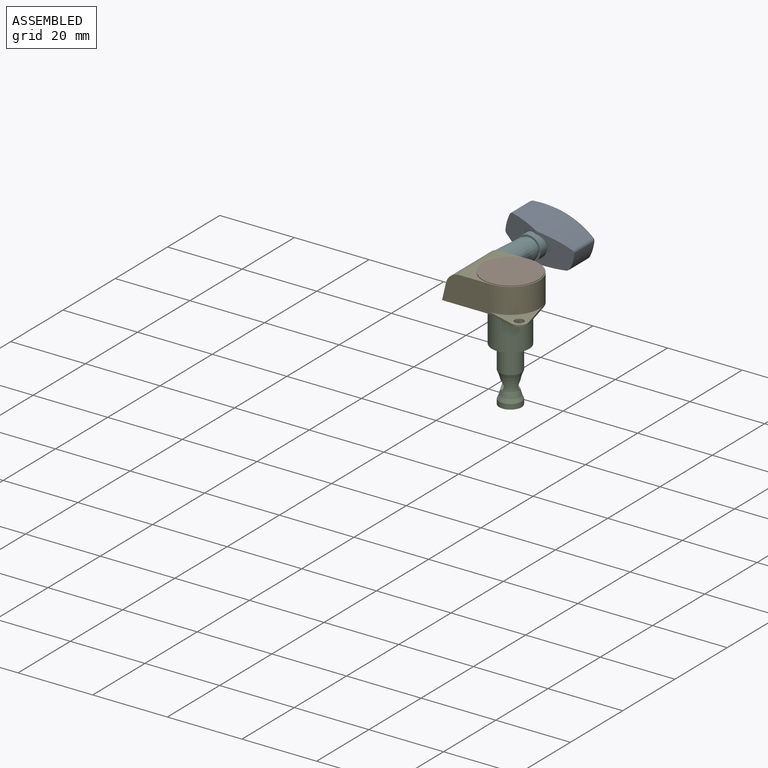
[diagram: assembled view]
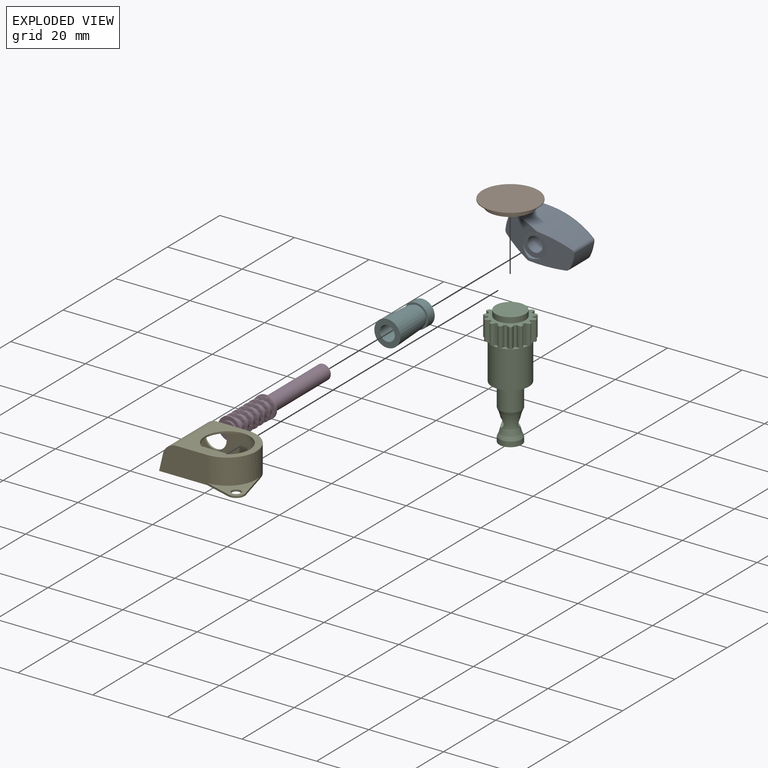
[diagram: exploded view]
GUIDED TOUR — MATED ASSEMBLY (Onshape document fb40458a8e67e77b70118024, AutoMate assembly fb40458a8e67e77b70118024_83d14cbe5c2bbadbdae3085f_6c880f89a0da376d5c83e3e6_default)

This assembly has 6 components, labeled P0..P5 below (a component is one placed occurrence of a part; the same part can appear more than once), held together by 5 mates. A mate is a constraint between two components; its type names the relative motion it leaves free:
  FASTENED — locks the two components together rigidly (no relative motion),
  REVOLUTE — leaves rotation about the listed axis free (a hinge).
Axis/direction vectors are unit vectors and 'through' points are millimeter coordinates, both in the assembly's world frame.

MATES
  1. FASTENED "Fest 2": P5 <-> P0, direction (0.000, 1.000, 0.000) through (-7.39, 19.83, 6.28) mm
  2. FASTENED "Fest 1": P1 <-> P4, direction (0.000, 0.000, -1.000) through (0.91, -1.42, 9.93) mm
  3. REVOLUTE "Drehen 1": P2 <-> P1, axis (0.000, 0.000, 1.000) through (0.91, -1.42, 9.93) mm
  4. FASTENED "Fest 3": P0 <-> P3, direction (0.000, 1.000, 0.000) through (-7.39, 27.83, 6.28) mm
  5. REVOLUTE "Drehen 2": P3 <-> P4, axis (0.000, -1.000, 0.000) through (-7.39, -8.67, 6.28) mm

ASSEMBLY ORDER
  1. P0 — the base component [order heuristic]
  2. P3 [order heuristic]
  3. P5 [order heuristic]
  4. P4 [order heuristic]
  5. P1 [order heuristic]
  6. P2 [order heuristic]
Order-tag legend:
  [order heuristic] — this assembly is geometrically interlocked (no collision-free removal order exists), so components are listed in mate-graph order; insertion feasibility is not verified.

Of the 6 components, 4 carry the full construction recipe — the FeatureScript program that regenerates the part's solid from scratch; the rest are supplied as boundary geometry only.
Each toured component is shown spotlighted twice — in the assembled view, then in the exploded view, where a leader line traces a displaced component back to its assembled socket (saturated green if recipe-attached, orange if geometry-only; every other component desaturated gray) — followed by its recipe or geometry summary and the mates that hold it.
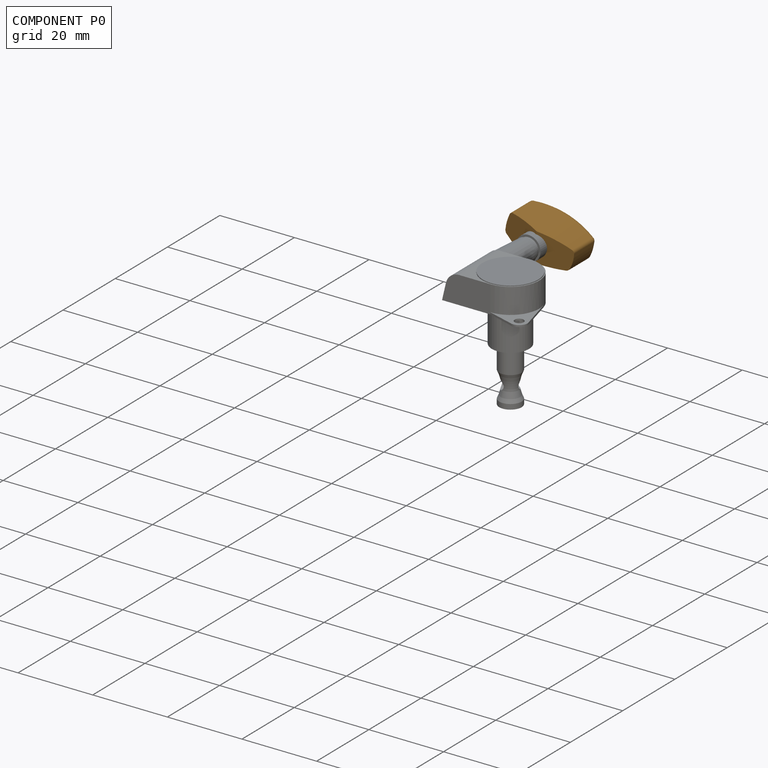
[diagram: component P0 — assembled]
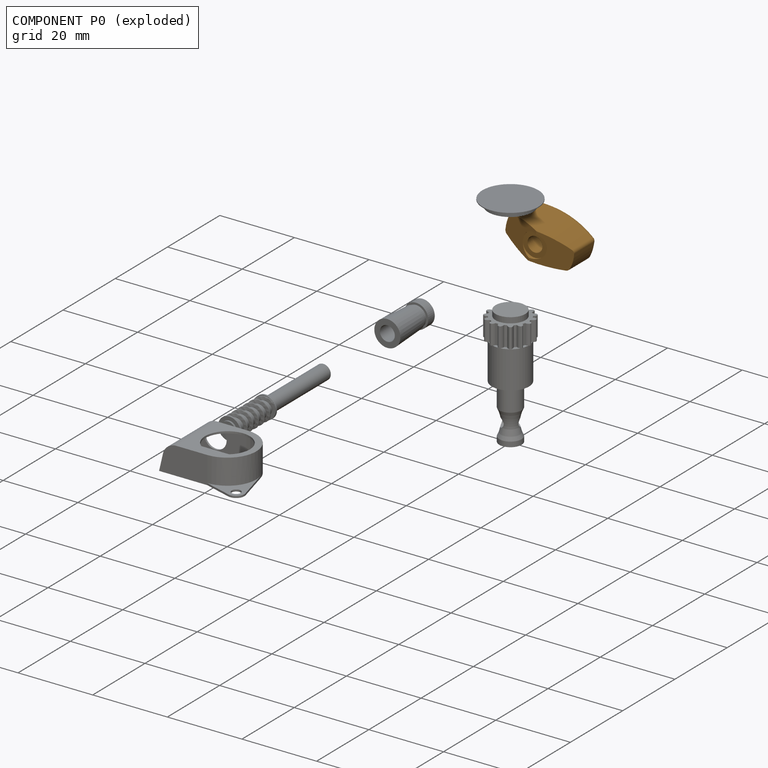
[diagram: component P0 — exploded]
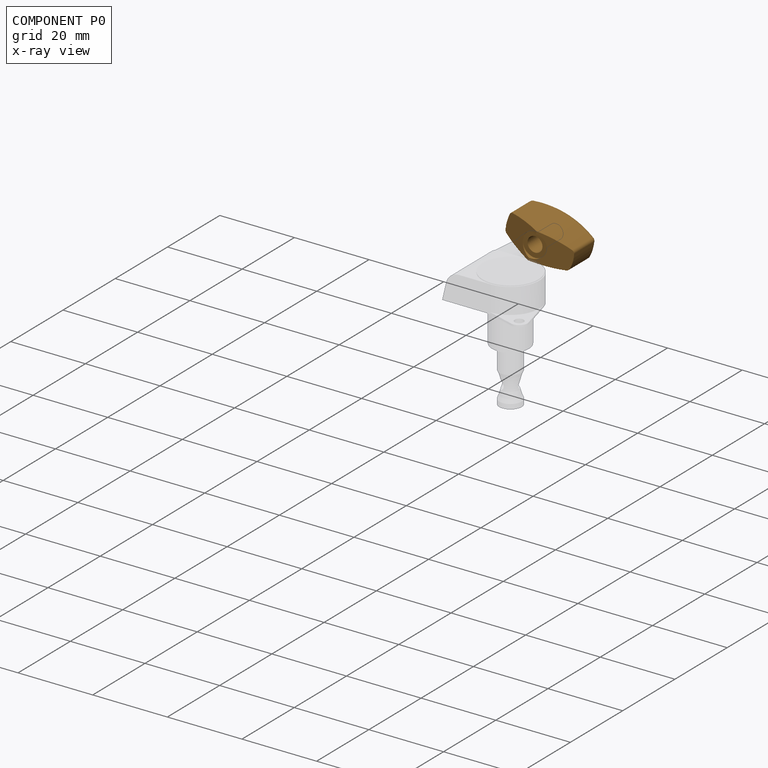
[diagram: component P0 — x-ray view]
COMPONENT P0 — geometry summary (no construction recipe available for this part):
  bounding box: 18.5 x 12.1 x 8.1 mm
  B-rep topology: 1 solid, 26 faces, 122 edges
  volume: 1106 mm^3 (61% of its bounding box)
  symmetry: 2-fold rotationally symmetric about the z axis; mirror-symmetric across its x mid-plane, y mid-plane
Held by: FASTENED mate "Fest 2" to P5; FASTENED mate "Fest 3" to P3.
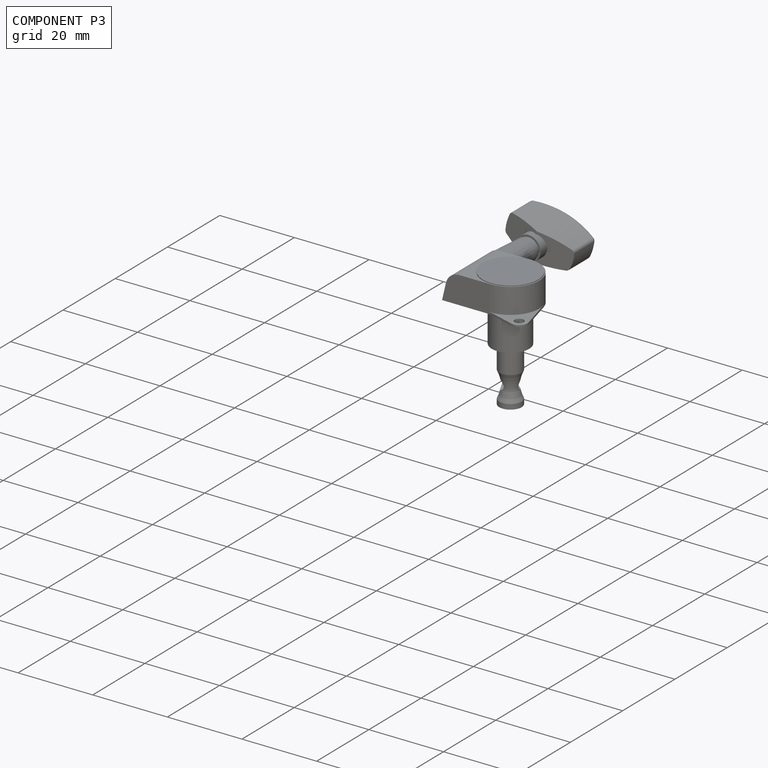
[diagram: component P3 — assembled]
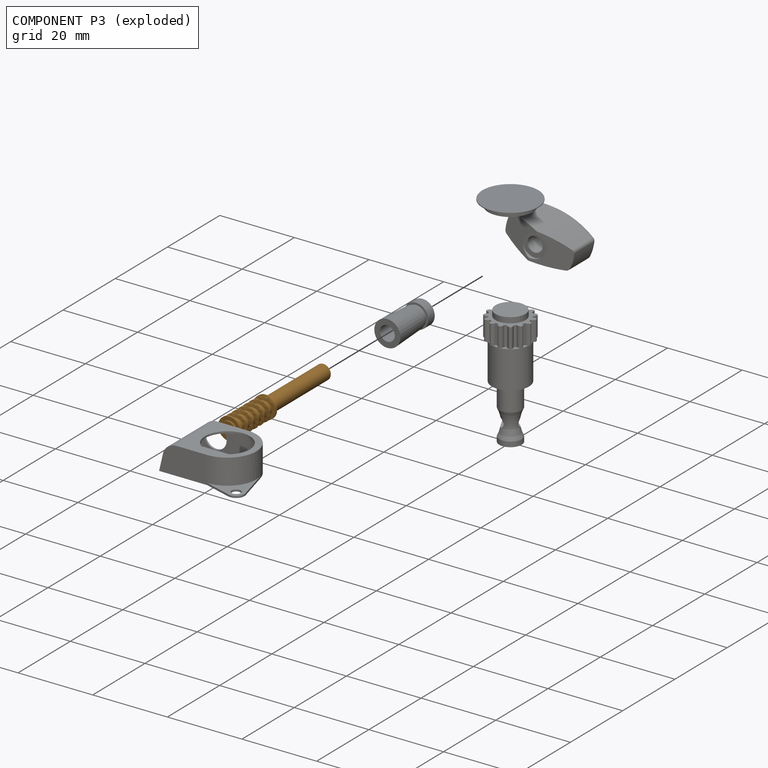
[diagram: component P3 — exploded]
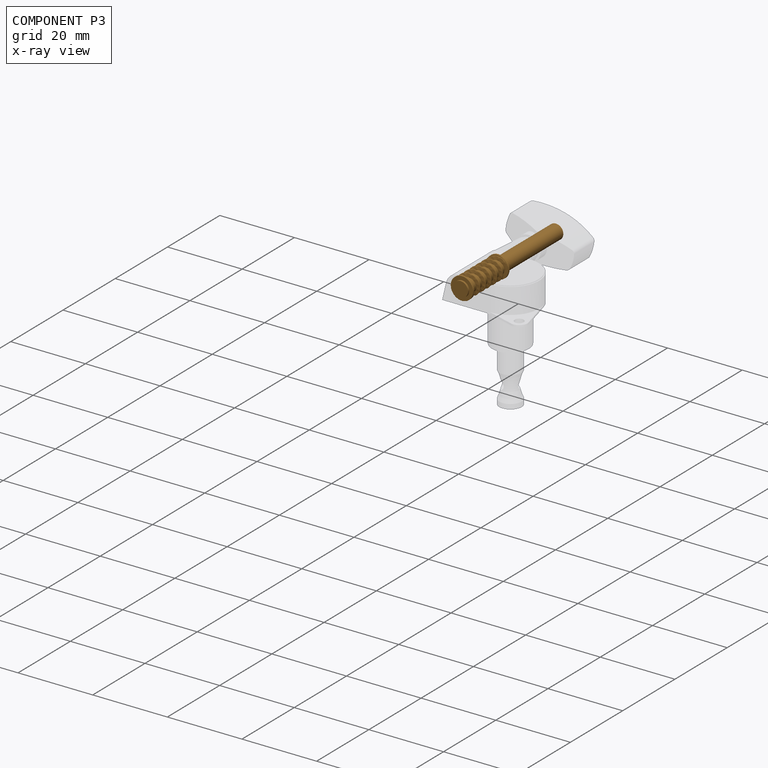
[diagram: component P3 — x-ray view]
COMPONENT P3 — geometry summary (no construction recipe available for this part):
  bounding box: 37.1 x 7.3 x 6.6 mm
  B-rep topology: 1 solid, 22 faces, 106 edges
  volume: 510 mm^3 (29% of its bounding box)
Held by: FASTENED mate "Fest 3" to P0; REVOLUTE mate "Drehen 2" to P4.
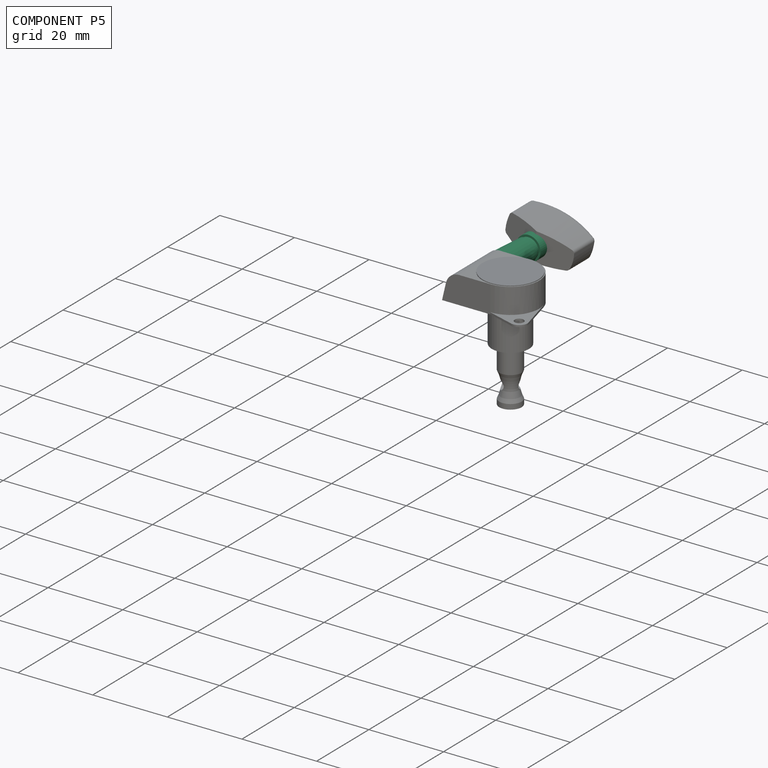
[diagram: component P5 — assembled]
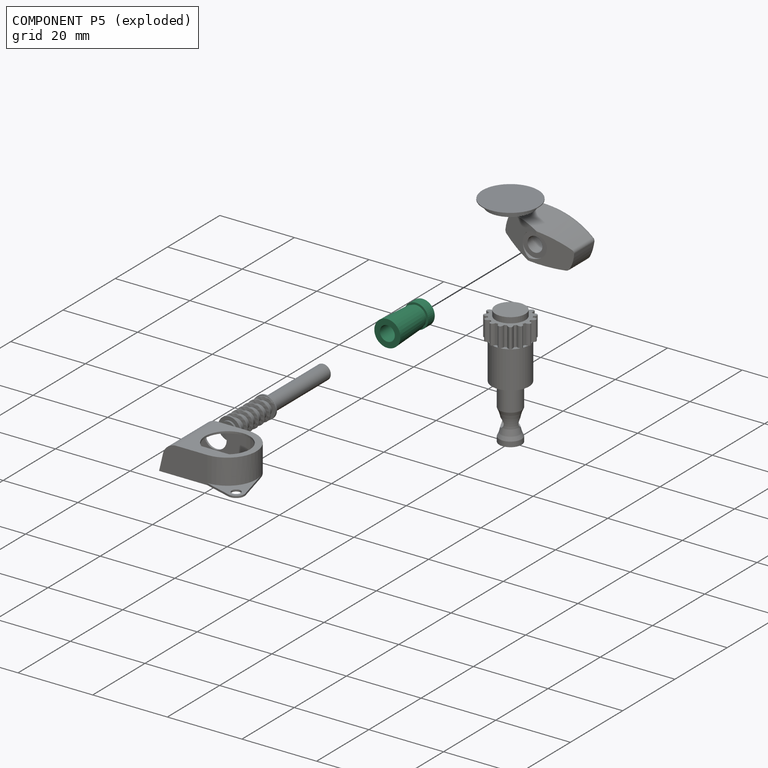
[diagram: component P5 — exploded]
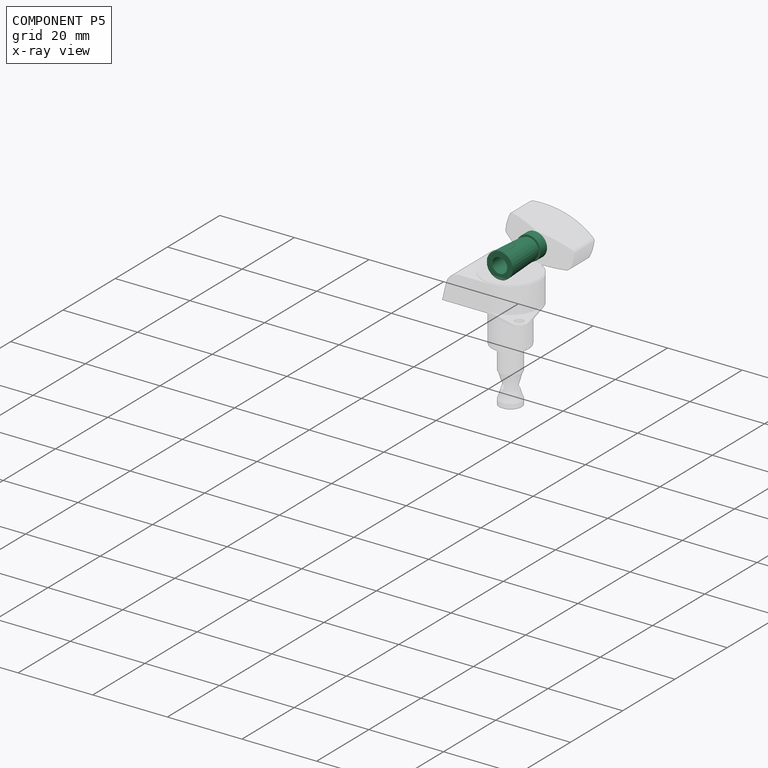
[diagram: component P5 — x-ray view]
COMPONENT P5 — recipe-attached (CADFS 00795863, mesh-verified: the recipe's output STEP matches this component's geometry to below the mesh-comparison resolution (tessellation chordal tolerance ~0.0251 mm)).
Held by: FASTENED mate "Fest 2" to P0.
Construction recipe (FeatureScript — the CAD program that rebuilds this solid; sketch coordinates are in the units given by the * unit suffixes, e.g. mm):

FeatureScript 1511;
import(path : "onshape/std/geometry.fs", version : "1511.0");
import(path : "onshape/std/common.fs", version : "1511.0");
const mm = millimeter;
const VERTEX = EntityType.VERTEX;
const EDGE = EntityType.EDGE;
const FACE = EntityType.FACE;
const BODY = EntityType.BODY;
function v(x, y){return vector(x, y);}
function OD(order){return orderDisambiguation(order);}
function OSD(set){return originalSetDisambiguation(set);}
function TD(topology){return topologyDisambiguation(topology);}
function TDD(query){return trueDependencyDisambiguation(query);}
function sQuery(a, b, c) {return sketchEntityQuery(a, b, c);}

annotation { "Feature Type Name" : "Feature", "Feature Type Description" : "" }
export const myFeature = defineFeature(function(context is Context, id is Id, definition is map)
    precondition{}
    {
        {
            var Q0;
            Q0=qCreatedBy(makeId("Front.planeOp"),FACE);
            var sketch = newSketch(context, id + "F0", { "sketchPlane" : qUnion([Q0])});
            skLineSegment(sketch, "E0", {"start": v(3.5, 0) * mm, "end": v(3, 10) * mm});
            skLineSegment(sketch, "E1", {"start": v(3, 10) * mm, "end": v(2.7, 10) * mm});
            skLineSegment(sketch, "E2", {"start": v(2.7, 10) * mm, "end": v(2.7, 11) * mm});
            skLineSegment(sketch, "E3", {"start": v(2.7, 11) * mm, "end": v(3.25, 11) * mm});
            skLineSegment(sketch, "E4", {"start": v(3.25, 11) * mm, "end": v(3.25, 13.5) * mm});
            skLineSegment(sketch, "E5", {"start": v(3.25, 13.5) * mm, "end": v(2, 13.5) * mm});
            skLineSegment(sketch, "E6", {"start": v(2, 13.5) * mm, "end": v(2, 0) * mm});
            skLineSegment(sketch, "E7", {"start": v(2, 0) * mm, "end": v(3.5, 0) * mm});
            skLineSegment(sketch, "E8", {"start": v(0, 13.27) * mm, "end": v(0, 0) * mm, "construction": true});
            skSolve(sketch);
        }
        {
            var Q0;
            Q0 = qSketchRegion(id + "F0", true);
            var Q1;
            Q1=sQuery(id+"F0.wireOp",EDGE,"E8");
            revolve(context, id + "F1", {"surfaceOperationType" : NewSurfaceOperationType.NEW, "entities" : qUnion([Q0]), "axis" : qUnion([Q1]), "revolveType" : RevolveType.FULL});
        }
    });
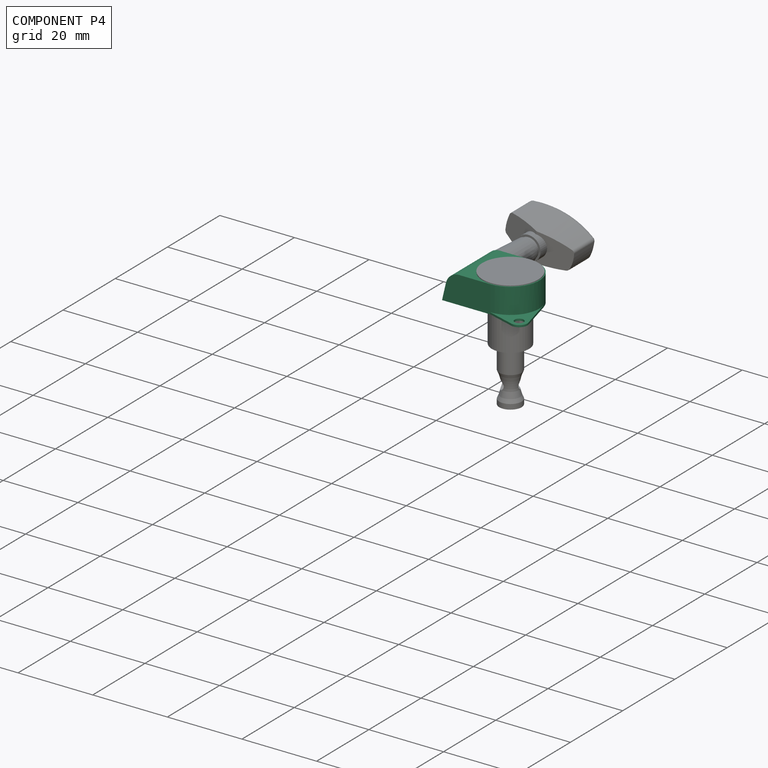
[diagram: component P4 — assembled]
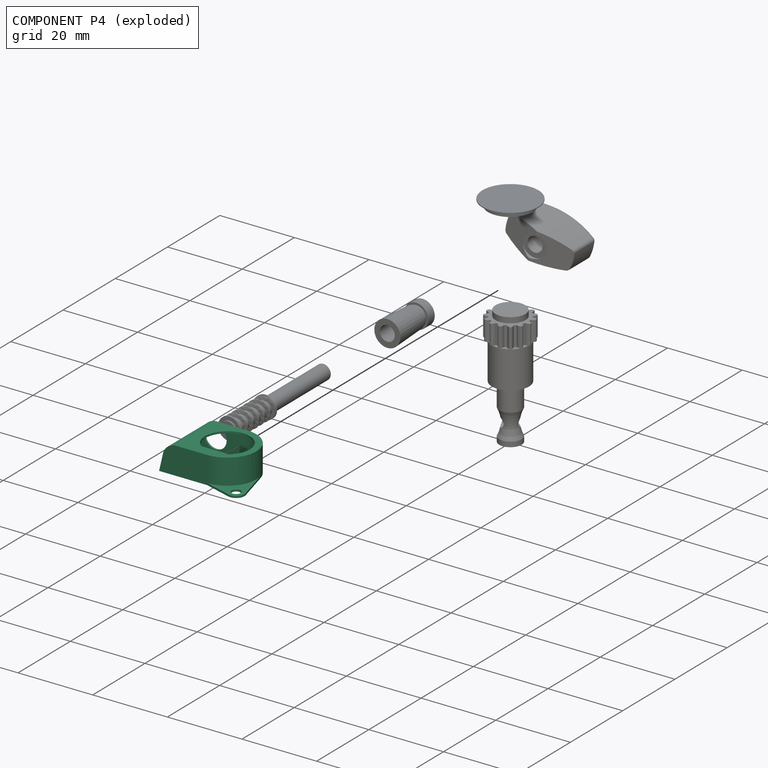
[diagram: component P4 — exploded]
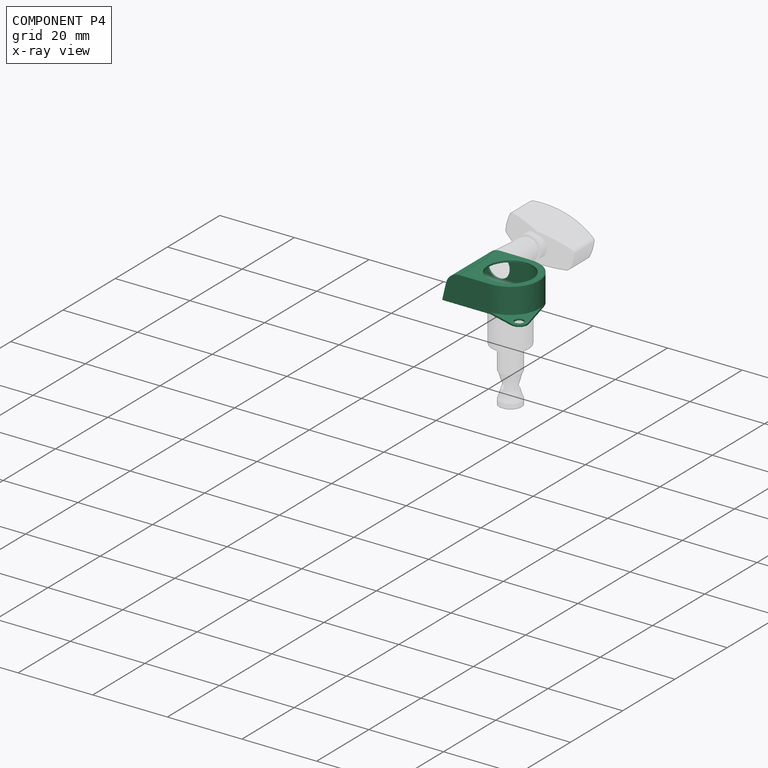
[diagram: component P4 — x-ray view]
COMPONENT P4 — recipe-attached (CADFS 00795860, mesh-verified: the recipe's output STEP matches this component's geometry to below the mesh-comparison resolution (tessellation chordal tolerance ~0.0448 mm)).
Held by: FASTENED mate "Fest 1" to P1; REVOLUTE mate "Drehen 2" to P3.
Construction recipe (FeatureScript — the CAD program that rebuilds this solid; sketch coordinates are in the units given by the * unit suffixes, e.g. mm):

FeatureScript 1511;
import(path : "onshape/std/geometry.fs", version : "1511.0");
import(path : "onshape/std/common.fs", version : "1511.0");
const mm = millimeter;
const VERTEX = EntityType.VERTEX;
const EDGE = EntityType.EDGE;
const FACE = EntityType.FACE;
const BODY = EntityType.BODY;
function v(x, y){return vector(x, y);}
function OD(order){return orderDisambiguation(order);}
function OSD(set){return originalSetDisambiguation(set);}
function TD(topology){return topologyDisambiguation(topology);}
function TDD(query){return trueDependencyDisambiguation(query);}
function sQuery(a, b, c) {return sketchEntityQuery(a, b, c);}

annotation { "Feature Type Name" : "Feature", "Feature Type Description" : "" }
export const myFeature = defineFeature(function(context is Context, id is Id, definition is map)
    precondition{}
    {
        {
            var Q0;
            Q0=qCreatedBy(makeId("Top.planeOp"),FACE);
            var sketch = newSketch(context, id + "F0", { "sketchPlane" : qUnion([Q0])});
            skLineSegment(sketch, "E0.bottom", {"start": v(-12.9, 7.75) * mm, "end": v(10, 7.75) * mm, "construction": true});
            skLineSegment(sketch, "E0.top", {"start": v(-12.9, -10) * mm, "end": v(10, -10) * mm, "construction": true});
            skLineSegment(sketch, "E0.left", {"start": v(-12.9, 7.75) * mm, "end": v(-12.9, -10) * mm, "construction": true});
            skLineSegment(sketch, "E0.right", {"start": v(10, 7.75) * mm, "end": v(10, -10) * mm, "construction": true});
            skLineSegment(sketch, "E1", {"start": v(7.8, -7.8) * mm, "end": v(7.8, -10) * mm, "construction": true});
            skLineSegment(sketch, "E2", {"start": v(7.8, -10) * mm, "end": v(10, -10) * mm, "construction": true});
            skCircle(sketch, "E3", {"center": v(7.8, -7.8) * mm, "radius": 1.2 * mm});
            skLineSegment(sketch, "E4", {"start": v(-12.9, 7.75) * mm, "end": v(-12.9, -7.75) * mm});
            skArc(sketch, "E5", {"start": v(0, 7.75) * mm, "mid": v(7.75, 0) * mm, "end": v(0, -7.75) * mm});
            skLineSegment(sketch, "E6", {"start": v(0, 7.75) * mm, "end": v(-12.9, 7.75) * mm});
            skLineSegment(sketch, "E7", {"start": v(0, -7.75) * mm, "end": v(-12.9, -7.75) * mm});
            skArc(sketch, "E8", {"start": v(7.17, -9.9) * mm, "mid": v(9.33, -9.38) * mm, "end": v(9.93, -7.24) * mm});
            skLineSegment(sketch, "E9", {"start": v(0, -7.75) * mm, "end": v(7.17, -9.9) * mm});
            skLineSegment(sketch, "E10", {"start": v(9.93, -7.24) * mm, "end": v(7.5, 1.98) * mm});
            skCircle(sketch, "E11", {"center": v(0, 0) * mm, "radius": 5 * mm});
            skLineSegment(sketch, "E12", {"start": v(0, 7.75) * mm, "end": v(0, -7.75) * mm, "construction": true});
            skLineSegment(sketch, "E13", {"start": v(-8.3, 7.75) * mm, "end": v(-8.3, -7.75) * mm, "construction": true});
            skLineSegment(sketch, "E14", {"start": v(-5.9, 7.75) * mm, "end": v(-5.9, -7.75) * mm, "construction": true});
            skLineSegment(sketch, "E15", {"start": v(-6.3, 7.75) * mm, "end": v(-6.3, -7.75) * mm, "construction": true});
            skLineSegment(sketch, "E16", {"start": v(-10.3, 7.75) * mm, "end": v(-10.3, -7.75) * mm, "construction": true});
            skCircle(sketch, "E17", {"center": v(0, 0) * mm, "radius": 5 * mm, "construction": true});
            skCircle(sketch, "E18", {"center": v(0, 0) * mm, "radius": 5.9 * mm, "construction": true});
            skLineSegment(sketch, "E19", {"start": v(-11.2, 7.75) * mm, "end": v(-11.2, -7.75) * mm, "construction": true});
            skLineSegment(sketch, "E20", {"start": v(-5.4, 7.75) * mm, "end": v(-5.4, -7.75) * mm, "construction": true});
            skSolve(sketch);
        }
        {
            var Q0;
            Q0 = qSketchRegion(id + "F0", true);
            extrude(context, id + "F1", {"entities" : qUnion([Q0]), "depth" : 0.5 * mm, "offsetDistance" : 25 * mm});
        }
        {
            var Q0;
            Q0=qCreatedBy(makeId("Top.planeOp"),FACE);
            var sketch = newSketch(context, id + "F2", { "sketchPlane" : qUnion([Q0])});
            skLineSegment(sketch, "E21", {"start": v(-12.93, -7.75) * mm, "end": v(0, -7.75) * mm});
            skLineSegment(sketch, "E22", {"start": v(-12.93, -7.75) * mm, "end": v(-12.93, 7.75) * mm});
            skLineSegment(sketch, "E23", {"start": v(-12.93, 7.75) * mm, "end": v(0, 7.75) * mm});
            skArc(sketch, "E24", {"start": v(0, 7.75) * mm, "mid": v(7.75, 0) * mm, "end": v(0, -7.75) * mm});
            skLineSegment(sketch, "E25", {"start": v(-12.4, 7.25) * mm, "end": v(-12.4, -7.25) * mm});
            skLineSegment(sketch, "E26", {"start": v(-12.4, -7.25) * mm, "end": v(0, -7.25) * mm});
            skLineSegment(sketch, "E27", {"start": v(-12.4, 7.25) * mm, "end": v(0, 7.25) * mm});
            skArc(sketch, "E28", {"start": v(0, 7.25) * mm, "mid": v(7.25, 0) * mm, "end": v(0, -7.25) * mm});
            skSolve(sketch);
        }
        {
            var Q0;
            Q0 = qSketchRegion(id + "F2", true);
            extrude(context, id + "F3", {"entities" : qUnion([Q0]), "operationType" : NewBodyOperationType.ADD, "depth" : 7.3 * mm, "offsetDistance" : 25 * mm, "hasSecondDirection" : true, "secondDirectionOppositeDirection" : false, "secondDirectionDepth" : 0.5 * mm});
        }
        {
            var Q0;
            Q0=makeQuery(id+"F3.boolean.opBoolean","MERGE",FACE,{"derivedFrom":[makeQuery(id+"F1.opExtrude","SWEPT_FACE",FACE,{"disambiguationData":[OSD([sQuery(id+"F0.wireOp",EDGE,"E6")])]}),makeQuery(id+"F3.opExtrude","SWEPT_FACE",FACE,{"disambiguationData":[OSD([sQuery(id+"F2.wireOp",EDGE,"E23")])]})]});
            var sketch = newSketch(context, id + "F4", { "sketchPlane" : qUnion([Q0])});
            skLineSegment(sketch, "E29", {"start": v(8.3, 0) * mm, "end": v(8.3, 7.3) * mm, "construction": true});
            skCircle(sketch, "E30", {"center": v(8.3, 3.65) * mm, "radius": 3 * mm});
            skSolve(sketch);
        }
        {
            var Q0;
            Q0 = qSketchRegion(id + "F4", true);
            extrude(context, id + "F5", {"entities" : qUnion([Q0]), "operationType" : NewBodyOperationType.REMOVE, "endBound" : BoundingType.UP_TO_NEXT, "oppositeDirection" : true, "depth" : 25 * mm, "offsetDistance" : 25 * mm});
        }
        {
            var Q0;
            Q0=makeQuery(id+"F3.opExtrude","SWEPT_FACE",FACE,{"disambiguationData":[OSD([sQuery(id+"F2.wireOp",EDGE,"E26")])]});
            var sketch = newSketch(context, id + "F6", { "sketchPlane" : qUnion([Q0])});
            skCircle(sketch, "E31", {"center": v(8.3, 3.65) * mm, "radius": 2 * mm});
            skLineSegment(sketch, "E32", {"start": v(8.3, 0) * mm, "end": v(8.3, 7.3) * mm, "construction": true});
            skCircle(sketch, "E33", {"center": v(8.3, 3.65) * mm, "radius": 2.25 * mm});
            skSolve(sketch);
        }
        {
            var Q0;
            Q0 = qSketchRegion(id + "F6", true);
            extrude(context, id + "F7", {"entities" : qUnion([Q0]), "operationType" : NewBodyOperationType.ADD, "depth" : 0.5 * mm, "offsetDistance" : 25 * mm});
        }
        {
            var Q0;
            Q0=makeQuery(id+"F3.boolean.opBoolean","MERGE",FACE,{"derivedFrom":[makeQuery(id+"F1.opExtrude","SWEPT_FACE",FACE,{"disambiguationData":[OSD([sQuery(id+"F0.wireOp",EDGE,"E6")])]}),makeQuery(id+"F3.opExtrude","SWEPT_FACE",FACE,{"disambiguationData":[OSD([sQuery(id+"F2.wireOp",EDGE,"E23")])]})]});
            var sketch = newSketch(context, id + "F8", { "sketchPlane" : qUnion([Q0])});
            skLineSegment(sketch, "E34", {"start": v(8.3, 0) * mm, "end": v(8.3, 7.3) * mm, "construction": true});
            skArc(sketch, "E35", {"start": v(8.3, 7.3) * mm, "mid": v(10.57, 6.5) * mm, "end": v(11.85, 4.48) * mm});
            skLineSegment(sketch, "E36", {"start": v(12.9, 0) * mm, "end": v(11.85, 4.48) * mm});
            skLineSegment(sketch, "E37", {"start": v(8.3, 7.3) * mm, "end": v(15.27, 7.3) * mm});
            skLineSegment(sketch, "E38", {"start": v(15.27, 7.3) * mm, "end": v(12.9, 0) * mm});
            skSolve(sketch);
        }
        {
            var Q0;
            Q0 = qSketchRegion(id + "F8", true);
            extrude(context, id + "F9", {"entities" : qUnion([Q0]), "operationType" : NewBodyOperationType.REMOVE, "endBound" : BoundingType.THROUGH_ALL, "oppositeDirection" : true, "depth" : 25 * mm, "offsetDistance" : 25 * mm});
        }
        {
            var Q0;
            {var subQ0=sQuery(id+"F0.wireOp",EDGE,"E11");Q0=makeQuery(id+"F3.boolean.opBoolean","SPLIT",FACE,{"disambiguationData":[TD([makeQuery(id+"F1.opExtrude","SWEPT_FACE",FACE,{"disambiguationData":[OSD([subQ0])]})])],"derivedFrom":makeQuery(id+"F1.opExtrude","CAP_FACE",FACE,{"disambiguationData":[OSD([sQuery(id+"F0.wireOp",EDGE,"E3"),sQuery(id+"F0.wireOp",EDGE,"E4"),sQuery(id+"F0.wireOp",EDGE,"E5"),sQuery(id+"F0.wireOp",EDGE,"E6"),sQuery(id+"F0.wireOp",EDGE,"E7"),sQuery(id+"F0.wireOp",EDGE,"E8"),sQuery(id+"F0.wireOp",EDGE,"E9"),sQuery(id+"F0.wireOp",EDGE,"E10"),subQ0])],"isStart":false})});}
            var sketch = newSketch(context, id + "F10", { "sketchPlane" : qUnion([Q0])});
            skLineSegment(sketch, "E39.bottom", {"start": v(-11.2, 7.25) * mm, "end": v(-12.9, 7.25) * mm});
            skLineSegment(sketch, "E39.top", {"start": v(-11.2, -7.25) * mm, "end": v(-12.9, -7.25) * mm});
            skLineSegment(sketch, "E39.left", {"start": v(-11.2, 7.25) * mm, "end": v(-11.2, -7.25) * mm});
            skLineSegment(sketch, "E39.right", {"start": v(-12.9, 7.25) * mm, "end": v(-12.9, -7.25) * mm});
            skSolve(sketch);
        }
        {
            var Q0;
            Q0 = qSketchRegion(id + "F10", true);
            extrude(context, id + "F11", {"entities" : qUnion([Q0]), "operationType" : NewBodyOperationType.REMOVE, "depth" : 25 * mm, "offsetDistance" : 25 * mm});
        }
        {
            var Q0;
            Q0=makeQuery(id+"F11.boolean.opBoolean","MERGE",FACE,{"derivedFrom":[makeQuery(id+"F3.opExtrude","SWEPT_FACE",FACE,{"disambiguationData":[OSD([sQuery(id+"F2.wireOp",EDGE,"E27")])]}),makeQuery(id+"F11.opExtrude","SWEPT_FACE",FACE,{"disambiguationData":[OSD([sQuery(id+"F10.wireOp",EDGE,"E39.bottom")])]})]});
            var sketch = newSketch(context, id + "F12", { "sketchPlane" : qUnion([Q0])});
            skLineSegment(sketch, "E40", {"start": v(-8.3, 0) * mm, "end": v(-8.3, 7.3) * mm, "construction": true});
            skLineSegment(sketch, "E41", {"start": v(-8.3, 7.3) * mm, "end": v(-8.3, 6.8) * mm});
            skArc(sketch, "E42", {"start": v(-8.3, 7.3) * mm, "mid": v(-10.57, 6.5) * mm, "end": v(-11.85, 4.48) * mm});
            skArc(sketch, "E43", {"start": v(-8.3, 6.8) * mm, "mid": v(-10.21, 6.15) * mm, "end": v(-11.34, 4.48) * mm});
            skLineSegment(sketch, "E44", {"start": v(-11.85, 4.48) * mm, "end": v(-12.78, 0.5) * mm});
            skLineSegment(sketch, "E45", {"start": v(-11.34, 4.48) * mm, "end": v(-12.43, 0.5) * mm});
            skLineSegment(sketch, "E46", {"start": v(-12.78, 0.5) * mm, "end": v(-12.43, 0.5) * mm});
            skSolve(sketch);
        }
        {
            var Q0;
            Q0 = qSketchRegion(id + "F12", true);
            extrude(context, id + "F13", {"entities" : qUnion([Q0]), "operationType" : NewBodyOperationType.ADD, "endBound" : BoundingType.UP_TO_NEXT, "depth" : 25 * mm, "offsetDistance" : 25 * mm});
        }
        {
            var Q0;
            Q0=makeQuery(id+"F3.opExtrude","CAP_FACE",FACE,{"disambiguationData":[OSD([sQuery(id+"F2.wireOp",EDGE,"E21"),sQuery(id+"F2.wireOp",EDGE,"E22"),sQuery(id+"F2.wireOp",EDGE,"E23"),sQuery(id+"F2.wireOp",EDGE,"E24"),sQuery(id+"F2.wireOp",EDGE,"E25"),sQuery(id+"F2.wireOp",EDGE,"E26"),sQuery(id+"F2.wireOp",EDGE,"E27"),sQuery(id+"F2.wireOp",EDGE,"E28")])],"isStart":false});
            var sketch = newSketch(context, id + "F14", { "sketchPlane" : qUnion([Q0])});
            skLineSegment(sketch, "E47", {"start": v(-8.3, 7.25) * mm, "end": v(-8.3, -7.25) * mm});
            skLineSegment(sketch, "E48", {"start": v(-8.3, -7.25) * mm, "end": v(0, -7.25) * mm});
            skLineSegment(sketch, "E49", {"start": v(0, -7.25) * mm, "end": v(0, 7.25) * mm, "construction": true});
            skLineSegment(sketch, "E50", {"start": v(0, 7.25) * mm, "end": v(-8.3, 7.25) * mm});
            skArc(sketch, "E51", {"start": v(0, 7.25) * mm, "mid": v(7.25, 0) * mm, "end": v(0, -7.25) * mm});
            skCircle(sketch, "E52", {"center": v(0, 0) * mm, "radius": 6 * mm});
            skSolve(sketch);
        }
        {
            var Q0;
            Q0 = qSketchRegion(id + "F14", true);
            extrude(context, id + "F15", {"entities" : qUnion([Q0]), "operationType" : NewBodyOperationType.ADD, "oppositeDirection" : true, "depth" : 0.5 * mm, "offsetDistance" : 25 * mm});
        }
    });
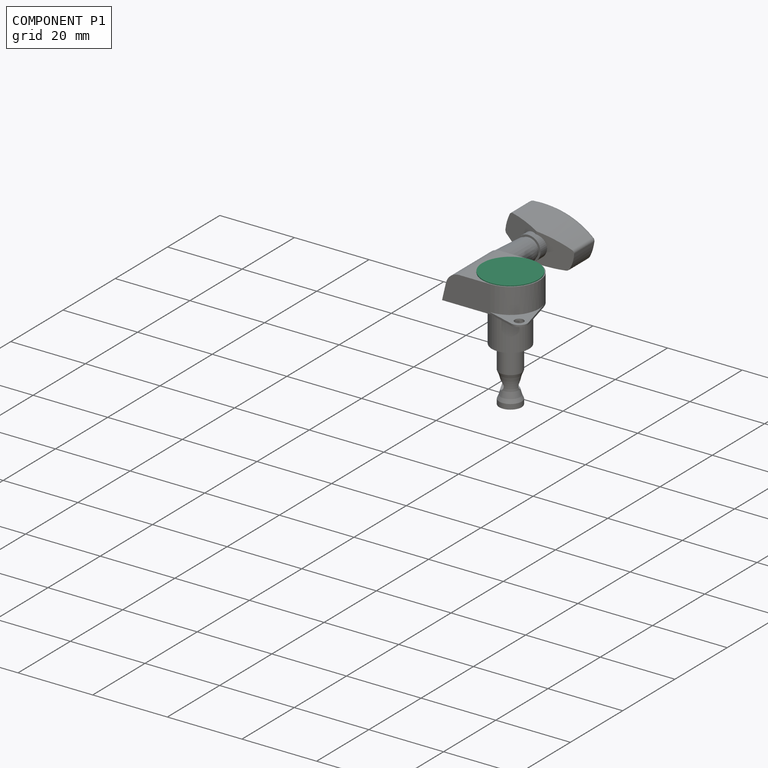
[diagram: component P1 — assembled]
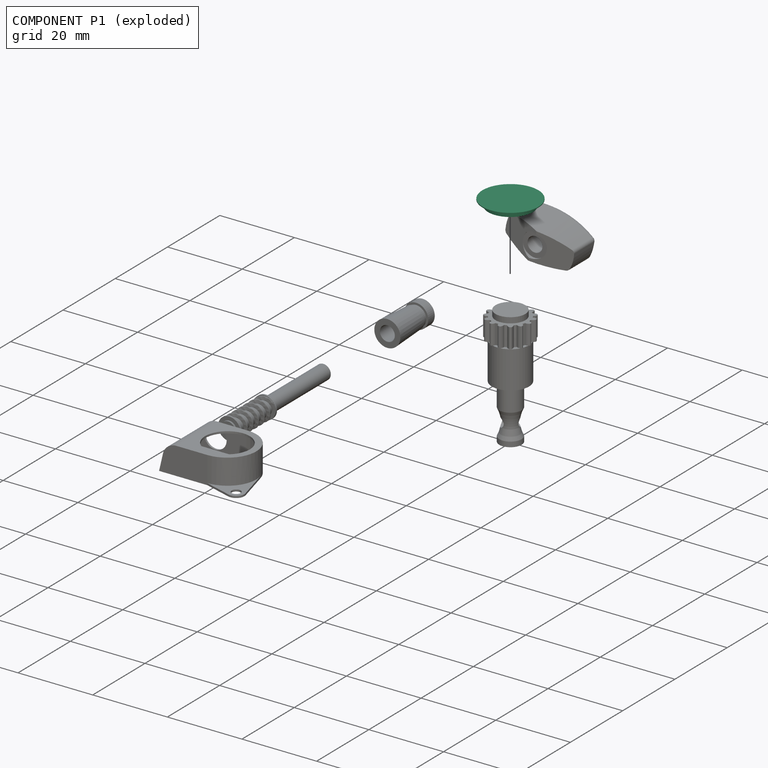
[diagram: component P1 — exploded]
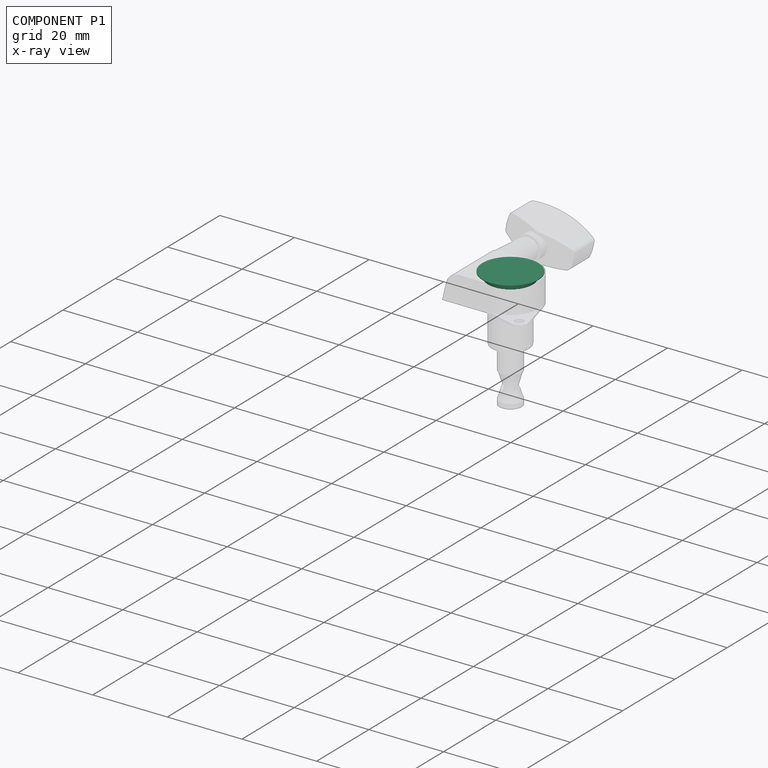
[diagram: component P1 — x-ray view]
COMPONENT P1 — recipe-attached (CADFS 00795873, mesh-verified: the recipe's output STEP matches this component's geometry to below the mesh-comparison resolution (tessellation chordal tolerance ~0.0319 mm)).
Held by: FASTENED mate "Fest 1" to P4; REVOLUTE mate "Drehen 1" to P2.
Construction recipe (FeatureScript — the CAD program that rebuilds this solid; sketch coordinates are in the units given by the * unit suffixes, e.g. mm):

FeatureScript 1511;
import(path : "onshape/std/geometry.fs", version : "1511.0");
import(path : "onshape/std/common.fs", version : "1511.0");
const mm = millimeter;
const VERTEX = EntityType.VERTEX;
const EDGE = EntityType.EDGE;
const FACE = EntityType.FACE;
const BODY = EntityType.BODY;
function v(x, y){return vector(x, y);}
function OD(order){return orderDisambiguation(order);}
function OSD(set){return originalSetDisambiguation(set);}
function TD(topology){return topologyDisambiguation(topology);}
function TDD(query){return trueDependencyDisambiguation(query);}
function sQuery(a, b, c) {return sketchEntityQuery(a, b, c);}

annotation { "Feature Type Name" : "Feature", "Feature Type Description" : "" }
export const myFeature = defineFeature(function(context is Context, id is Id, definition is map)
    precondition{}
    {
        {
            var Q0;
            Q0=qCreatedBy(makeId("Front.planeOp"),FACE);
            var sketch = newSketch(context, id + "F0", { "sketchPlane" : qUnion([Q0])});
            skLineSegment(sketch, "E0", {"start": v(0, -2) * mm, "end": v(0, 8.65) * mm, "construction": true});
            skLineSegment(sketch, "E1.bottom", {"start": v(6, 0) * mm, "end": v(4, 0) * mm});
            skLineSegment(sketch, "E1.left", {"start": v(6, 0) * mm, "end": v(6, 1.5) * mm});
            skLineSegment(sketch, "E1.right", {"start": v(4, 0) * mm, "end": v(4, 1.5) * mm});
            skLineSegment(sketch, "E2", {"start": v(4, 1.5) * mm, "end": v(0, 1.5) * mm});
            skLineSegment(sketch, "E3.bottom", {"start": v(0, 1.7) * mm, "end": v(7.5, 1.7) * mm});
            skLineSegment(sketch, "E3.top", {"start": v(0, 1.5) * mm, "end": v(4, 1.5) * mm});
            skLineSegment(sketch, "E3.left", {"start": v(0, 1.7) * mm, "end": v(0, 1.5) * mm});
            skLineSegment(sketch, "E3.right", {"start": v(7.5, 1.7) * mm, "end": v(7.5, 1.5) * mm});
            skLineSegment(sketch, "E4.trimOffspring", {"start": v(6, 1.5) * mm, "end": v(7.5, 1.5) * mm});
            skSolve(sketch);
        }
        {
            var Q0;
            Q0 = qSketchRegion(id + "F0", true);
            var Q1;
            Q1=sQuery(id+"F0.wireOp",EDGE,"E0");
            revolve(context, id + "F1", {"surfaceOperationType" : NewSurfaceOperationType.NEW, "entities" : qUnion([Q0]), "axis" : qUnion([Q1]), "revolveType" : RevolveType.FULL});
        }
    });
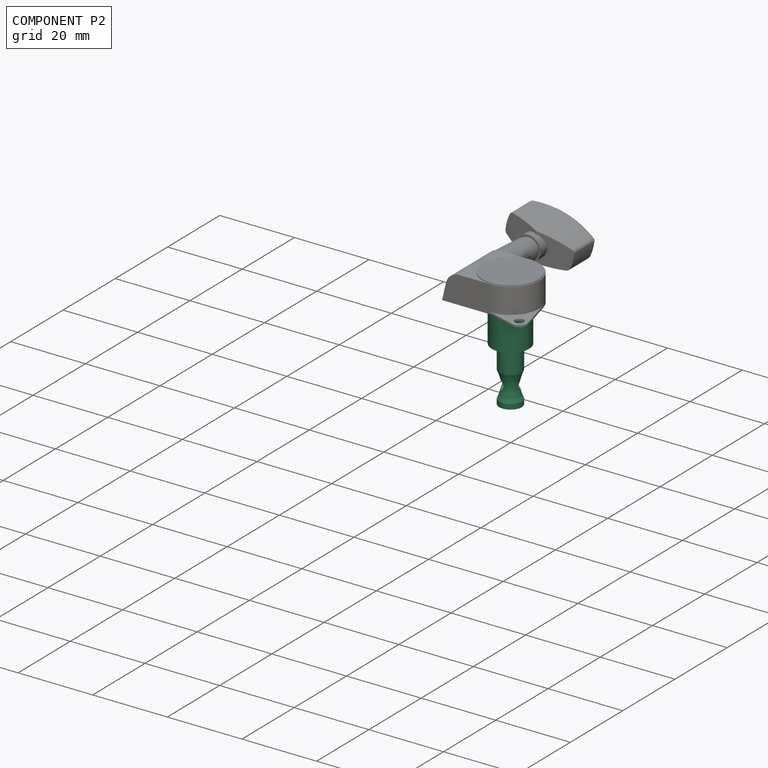
[diagram: component P2 — assembled]
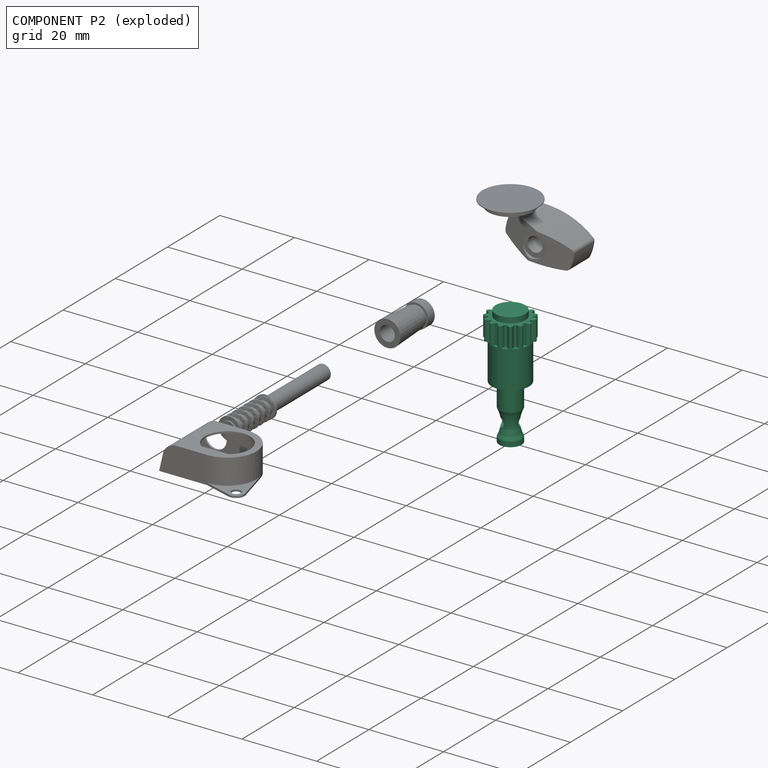
[diagram: component P2 — exploded]
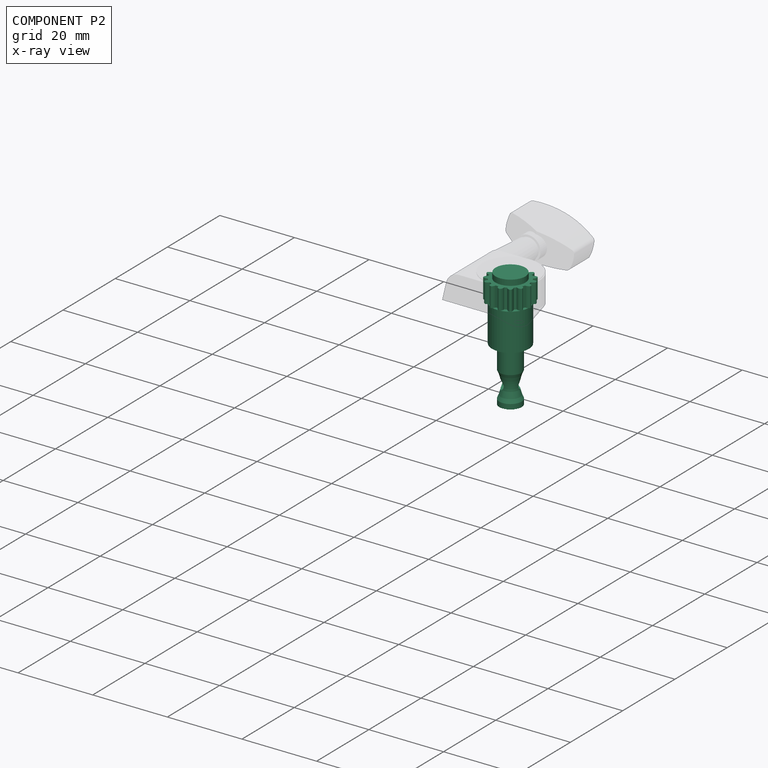
[diagram: component P2 — x-ray view]
COMPONENT P2 — recipe-attached (CADFS 00795872, mesh-verified: the recipe's output STEP matches this component's geometry to below the mesh-comparison resolution (tessellation chordal tolerance ~0.0544 mm)).
Held by: REVOLUTE mate "Drehen 1" to P1.
Construction recipe (FeatureScript — the CAD program that rebuilds this solid; sketch coordinates are in the units given by the * unit suffixes, e.g. mm):

FeatureScript 1511;
import(path : "onshape/std/geometry.fs", version : "1511.0");
import(path : "onshape/std/common.fs", version : "1511.0");
const mm = millimeter;
const VERTEX = EntityType.VERTEX;
const EDGE = EntityType.EDGE;
const FACE = EntityType.FACE;
const BODY = EntityType.BODY;
function v(x, y){return vector(x, y);}
function OD(order){return orderDisambiguation(order);}
function OSD(set){return originalSetDisambiguation(set);}
function TD(topology){return topologyDisambiguation(topology);}
function TDD(query){return trueDependencyDisambiguation(query);}
function sQuery(a, b, c) {return sketchEntityQuery(a, b, c);}

annotation { "Feature Type Name" : "Feature", "Feature Type Description" : "" }
export const myFeature = defineFeature(function(context is Context, id is Id, definition is map)
    precondition{}
    {
        {
            assignVariable(context, id + "F0", {"name" : "H", "anyValue" : 24.8 + 7.3});
        }
        {
            var Q0;
            Q0=qCreatedBy(makeId("Top.planeOp"),FACE);
            var sketch = newSketch(context, id + "F1", { "sketchPlane" : qUnion([Q0])});
            skCircle(sketch, "E0", {"center": v(0, 0) * mm, "radius": 3 * mm});
            skSolve(sketch);
        }
        {
            var Q0;
            Q0=qSketchRegion(id+"F1",true);
            extrude(context, id + "F2", {"entities" : qUnion([Q0]), "depth" : (getVariable(context, 'H')) * mm, "offsetDistance" : 25 * mm});
        }
        {
            var Q0;
            Q0=makeQuery(id+"F2.opExtrude","CAP_FACE",FACE,{"disambiguationData":[OSD([sQuery(id+"F1.wireOp",EDGE,"E0")])],"isStart":true});
            var sketch = newSketch(context, id + "F3", { "sketchPlane" : qUnion([Q0])});
            skCircle(sketch, "E1", {"center": v(0, 0) * mm, "radius": 5 * mm});
            skCircle(sketch, "E2", {"center": v(0, 0) * mm, "radius": 3 * mm});
            skSolve(sketch);
        }
        {
            var Q0;
            Q0=qSketchRegion(id+"F3",true);
            extrude(context, id + "F4", {"entities" : qUnion([Q0]), "operationType" : NewBodyOperationType.ADD, "oppositeDirection" : true, "depth" : (getVariable(context, 'H') - 14.8) * mm, "offsetDistance" : 25 * mm, "hasSecondDirection" : true, "secondDirectionOppositeDirection" : true, "secondDirectionDepth" : 7.3 * mm});
        }
        {
            var Q0;
            Q0=makeQuery(id+"F4.boolean.opBoolean","MERGE",FACE,{"derivedFrom":[makeQuery(id+"F2.opExtrude","CAP_FACE",FACE,{"disambiguationData":[OSD([sQuery(id+"F1.wireOp",EDGE,"E0")])],"isStart":true}),makeQuery(id+"F4.opExtrude","CAP_FACE",FACE,{"disambiguationData":[OSD([sQuery(id+"F3.wireOp",EDGE,"E1")])],"isStart":true})]});
            var sketch = newSketch(context, id + "F5", { "sketchPlane" : qUnion([Q0])});
            skArc(sketch, "E3", {"start": v(-0.23, 6) * mm, "mid": v(0, 6) * mm, "end": v(0.23, 6) * mm});
            skArc(sketch, "E4", {"start": v(-0.7, 4.95) * mm, "mid": v(0, 5) * mm, "end": v(0.7, 4.95) * mm});
            skLineSegment(sketch, "E5", {"start": v(-0.7, 4.95) * mm, "end": v(0.7, 4.95) * mm, "construction": true});
            skLineSegment(sketch, "E6", {"start": v(0, 10.97) * mm, "end": v(0, 0) * mm, "construction": true});
            skArc(sketch, "E7", {"start": v(-0.7, 4.95) * mm, "mid": v(-0.58, 5.52) * mm, "end": v(-0.23, 6) * mm});
            skArc(sketch, "E8", {"start": v(0.7, 4.95) * mm, "mid": v(0.58, 5.52) * mm, "end": v(0.23, 6) * mm});
            skArc(sketch, "E9.1.0", {"start": v(-2.65, 5.38) * mm, "mid": v(-2.44, 5.48) * mm, "end": v(-2.23, 5.57) * mm});
            skArc(sketch, "E9.1.1", {"start": v(-2.65, 4.24) * mm, "mid": v(-2.77, 4.81) * mm, "end": v(-2.65, 5.38) * mm});
            skArc(sketch, "E9.1.2", {"start": v(-2.65, 4.24) * mm, "mid": v(-2.03, 4.57) * mm, "end": v(-1.37, 4.8) * mm});
            skLineSegment(sketch, "E9.1.3", {"start": v(-2.65, 4.24) * mm, "end": v(-1.37, 4.8) * mm, "construction": true});
            skArc(sketch, "E9.1.4", {"start": v(-1.37, 4.8) * mm, "mid": v(-1.72, 5.28) * mm, "end": v(-2.23, 5.57) * mm});
            skArc(sketch, "E9.2.0", {"start": v(-4.61, 3.84) * mm, "mid": v(-4.46, 4.01) * mm, "end": v(-4.3, 4.18) * mm});
            skArc(sketch, "E9.2.1", {"start": v(-4.15, 2.8) * mm, "mid": v(-4.5, 3.27) * mm, "end": v(-4.61, 3.84) * mm});
            skArc(sketch, "E9.2.2", {"start": v(-4.15, 2.8) * mm, "mid": v(-3.72, 3.35) * mm, "end": v(-3.21, 3.83) * mm});
            skLineSegment(sketch, "E9.2.3", {"start": v(-4.15, 2.8) * mm, "end": v(-3.21, 3.83) * mm, "construction": true});
            skArc(sketch, "E9.2.4", {"start": v(-3.21, 3.83) * mm, "mid": v(-3.72, 4.12) * mm, "end": v(-4.3, 4.18) * mm});
            skArc(sketch, "E10.4.3.0", {"start": v(-4.92, 0.86) * mm, "mid": v(-5.43, 1.16) * mm, "end": v(-5.77, 1.63) * mm});
            skArc(sketch, "E10.6.3.0", {"start": v(-5.77, 1.63) * mm, "mid": v(-5.7, 1.85) * mm, "end": v(-5.63, 2.07) * mm});
            skArc(sketch, "E10.8.3.0", {"start": v(-4.92, 0.86) * mm, "mid": v(-4.76, 1.55) * mm, "end": v(-4.5, 2.2) * mm});
            skLineSegment(sketch, "E10.12.3.0", {"start": v(-4.92, 0.86) * mm, "end": v(-4.5, 2.2) * mm, "construction": true});
            skArc(sketch, "E10.15.3.0", {"start": v(-4.5, 2.2) * mm, "mid": v(-5.07, 2.26) * mm, "end": v(-5.63, 2.07) * mm});
            skArc(sketch, "E10.4.4.0", {"start": v(-4.85, -1.21) * mm, "mid": v(-5.43, -1.15) * mm, "end": v(-5.94, -0.86) * mm});
            skArc(sketch, "E10.6.4.0", {"start": v(-5.94, -0.86) * mm, "mid": v(-5.97, -0.63) * mm, "end": v(-5.99, -0.4) * mm});
            skArc(sketch, "E10.8.4.0", {"start": v(-4.85, -1.21) * mm, "mid": v(-4.97, -0.52) * mm, "end": v(-5, 0.18) * mm});
            skLineSegment(sketch, "E10.12.4.0", {"start": v(-4.85, -1.21) * mm, "end": v(-5, 0.18) * mm, "construction": true});
            skArc(sketch, "E10.15.4.0", {"start": v(-5, 0.18) * mm, "mid": v(-5.55, 0) * mm, "end": v(-5.99, -0.4) * mm});
            skArc(sketch, "E10.4.5.0", {"start": v(-3.94, -3.08) * mm, "mid": v(-4.5, -3.26) * mm, "end": v(-5.08, -3.2) * mm});
            skArc(sketch, "E10.6.5.0", {"start": v(-5.08, -3.2) * mm, "mid": v(-5.2, -3) * mm, "end": v(-5.3, -2.8) * mm});
            skArc(sketch, "E10.8.5.0", {"start": v(-3.94, -3.08) * mm, "mid": v(-4.33, -2.5) * mm, "end": v(-4.64, -1.87) * mm});
            skLineSegment(sketch, "E10.12.5.0", {"start": v(-3.94, -3.08) * mm, "end": v(-4.64, -1.87) * mm, "construction": true});
            skArc(sketch, "E10.15.5.0", {"start": v(-4.64, -1.87) * mm, "mid": v(-5.07, -2.26) * mm, "end": v(-5.3, -2.8) * mm});
            skArc(sketch, "E10.4.6.0", {"start": v(-2.34, -4.42) * mm, "mid": v(-2.78, -4.8) * mm, "end": v(-3.34, -4.99) * mm});
            skArc(sketch, "E10.6.6.0", {"start": v(-3.34, -4.99) * mm, "mid": v(-3.53, -4.85) * mm, "end": v(-3.71, -4.71) * mm});
            skArc(sketch, "E10.8.6.0", {"start": v(-2.34, -4.42) * mm, "mid": v(-2.94, -4.05) * mm, "end": v(-3.48, -3.6) * mm});
            skLineSegment(sketch, "E10.12.6.0", {"start": v(-2.34, -4.42) * mm, "end": v(-3.48, -3.6) * mm, "construction": true});
            skArc(sketch, "E10.15.6.0", {"start": v(-3.48, -3.6) * mm, "mid": v(-3.71, -4.13) * mm, "end": v(-3.71, -4.71) * mm});
            skArc(sketch, "E10.4.7.0", {"start": v(-0.34, -4.99) * mm, "mid": v(-0.58, -5.52) * mm, "end": v(-1.02, -5.91) * mm});
            skArc(sketch, "E10.6.7.0", {"start": v(-1.02, -5.91) * mm, "mid": v(-1.25, -5.87) * mm, "end": v(-1.47, -5.82) * mm});
            skArc(sketch, "E10.8.7.0", {"start": v(-0.34, -4.99) * mm, "mid": v(-1.04, -4.9) * mm, "end": v(-1.71, -4.7) * mm});
            skLineSegment(sketch, "E10.12.7.0", {"start": v(-0.34, -4.99) * mm, "end": v(-1.71, -4.7) * mm, "construction": true});
            skArc(sketch, "E10.15.7.0", {"start": v(-1.71, -4.7) * mm, "mid": v(-1.71, -5.28) * mm, "end": v(-1.47, -5.82) * mm});
            skArc(sketch, "E10.4.8.0", {"start": v(1.71, -4.7) * mm, "mid": v(1.71, -5.28) * mm, "end": v(1.47, -5.82) * mm});
            skArc(sketch, "E10.6.8.0", {"start": v(1.47, -5.82) * mm, "mid": v(1.25, -5.87) * mm, "end": v(1.02, -5.91) * mm});
            skArc(sketch, "E10.8.8.0", {"start": v(1.71, -4.7) * mm, "mid": v(1.04, -4.9) * mm, "end": v(0.34, -4.99) * mm});
            skLineSegment(sketch, "E10.12.8.0", {"start": v(1.71, -4.7) * mm, "end": v(0.34, -4.99) * mm, "construction": true});
            skArc(sketch, "E10.15.8.0", {"start": v(0.34, -4.99) * mm, "mid": v(0.58, -5.52) * mm, "end": v(1.02, -5.91) * mm});
            skArc(sketch, "E10.4.9.0", {"start": v(3.48, -3.6) * mm, "mid": v(3.71, -4.13) * mm, "end": v(3.71, -4.71) * mm});
            skArc(sketch, "E10.6.9.0", {"start": v(3.71, -4.71) * mm, "mid": v(3.53, -4.85) * mm, "end": v(3.34, -4.99) * mm});
            skArc(sketch, "E10.8.9.0", {"start": v(3.48, -3.6) * mm, "mid": v(2.94, -4.05) * mm, "end": v(2.34, -4.42) * mm});
            skLineSegment(sketch, "E10.12.9.0", {"start": v(3.48, -3.6) * mm, "end": v(2.34, -4.42) * mm, "construction": true});
            skArc(sketch, "E10.15.9.0", {"start": v(2.34, -4.42) * mm, "mid": v(2.78, -4.8) * mm, "end": v(3.34, -4.99) * mm});
            skArc(sketch, "E10.4.10.0", {"start": v(4.64, -1.87) * mm, "mid": v(5.07, -2.26) * mm, "end": v(5.3, -2.8) * mm});
            skArc(sketch, "E10.6.10.0", {"start": v(5.3, -2.8) * mm, "mid": v(5.2, -3) * mm, "end": v(5.08, -3.2) * mm});
            skArc(sketch, "E10.8.10.0", {"start": v(4.64, -1.87) * mm, "mid": v(4.33, -2.5) * mm, "end": v(3.94, -3.08) * mm});
            skLineSegment(sketch, "E10.12.10.0", {"start": v(4.64, -1.87) * mm, "end": v(3.94, -3.08) * mm, "construction": true});
            skArc(sketch, "E10.15.10.0", {"start": v(3.94, -3.08) * mm, "mid": v(4.5, -3.26) * mm, "end": v(5.08, -3.2) * mm});
            skArc(sketch, "E10.4.11.0", {"start": v(5, 0.18) * mm, "mid": v(5.55, 0) * mm, "end": v(5.99, -0.4) * mm});
            skArc(sketch, "E10.6.11.0", {"start": v(5.99, -0.4) * mm, "mid": v(5.97, -0.63) * mm, "end": v(5.94, -0.86) * mm});
            skArc(sketch, "E10.8.11.0", {"start": v(5, 0.18) * mm, "mid": v(4.97, -0.52) * mm, "end": v(4.85, -1.21) * mm});
            skLineSegment(sketch, "E10.12.11.0", {"start": v(5, 0.18) * mm, "end": v(4.85, -1.21) * mm, "construction": true});
            skArc(sketch, "E10.15.11.0", {"start": v(4.85, -1.21) * mm, "mid": v(5.43, -1.15) * mm, "end": v(5.94, -0.86) * mm});
            skArc(sketch, "E11.4.12.0", {"start": v(4.5, 2.2) * mm, "mid": v(5.07, 2.26) * mm, "end": v(5.63, 2.07) * mm});
            skArc(sketch, "E11.6.12.0", {"start": v(5.63, 2.07) * mm, "mid": v(5.7, 1.85) * mm, "end": v(5.77, 1.63) * mm});
            skArc(sketch, "E11.8.12.0", {"start": v(4.5, 2.2) * mm, "mid": v(4.76, 1.55) * mm, "end": v(4.92, 0.86) * mm});
            skLineSegment(sketch, "E11.12.12.0", {"start": v(4.5, 2.2) * mm, "end": v(4.92, 0.86) * mm, "construction": true});
            skArc(sketch, "E11.15.12.0", {"start": v(4.92, 0.86) * mm, "mid": v(5.43, 1.16) * mm, "end": v(5.77, 1.63) * mm});
            skArc(sketch, "E11.4.13.0", {"start": v(3.21, 3.83) * mm, "mid": v(3.72, 4.12) * mm, "end": v(4.3, 4.18) * mm});
            skArc(sketch, "E11.6.13.0", {"start": v(4.3, 4.18) * mm, "mid": v(4.46, 4.01) * mm, "end": v(4.61, 3.84) * mm});
            skArc(sketch, "E11.8.13.0", {"start": v(3.21, 3.83) * mm, "mid": v(3.72, 3.35) * mm, "end": v(4.15, 2.8) * mm});
            skLineSegment(sketch, "E11.12.13.0", {"start": v(3.21, 3.83) * mm, "end": v(4.15, 2.8) * mm, "construction": true});
            skArc(sketch, "E11.15.13.0", {"start": v(4.15, 2.8) * mm, "mid": v(4.5, 3.27) * mm, "end": v(4.61, 3.84) * mm});
            skArc(sketch, "E12.4.14.0", {"start": v(1.37, 4.8) * mm, "mid": v(1.72, 5.28) * mm, "end": v(2.23, 5.57) * mm});
            skArc(sketch, "E12.6.14.0", {"start": v(2.23, 5.57) * mm, "mid": v(2.44, 5.48) * mm, "end": v(2.65, 5.38) * mm});
            skArc(sketch, "E12.8.14.0", {"start": v(1.37, 4.8) * mm, "mid": v(2.03, 4.57) * mm, "end": v(2.65, 4.24) * mm});
            skLineSegment(sketch, "E12.12.14.0", {"start": v(1.37, 4.8) * mm, "end": v(2.65, 4.24) * mm, "construction": true});
            skArc(sketch, "E12.15.14.0", {"start": v(2.65, 4.24) * mm, "mid": v(2.77, 4.81) * mm, "end": v(2.65, 5.38) * mm});
            skCircle(sketch, "E13", {"center": v(0, 0) * mm, "radius": 5 * mm});
            skSolve(sketch);
        }
        {
            var Q0;
            Q0=qSketchRegion(id+"F5",true);
            extrude(context, id + "F6", {"entities" : qUnion([Q0]), "operationType" : NewBodyOperationType.ADD, "oppositeDirection" : true, "depth" : 6.8 * mm, "offsetDistance" : 25 * mm});
        }
        {
            var Q0;
            Q0=qCreatedBy(makeId("Front.planeOp"),FACE);
            var sketch = newSketch(context, id + "F7", { "sketchPlane" : qUnion([Q0])});
            skLineSegment(sketch, "E14", {"start": v(0, 40.6) * mm, "end": v(0, -13.25) * mm, "construction": true});
            skArc(sketch, "E15", {"start": v(0, 32.1) * mm, "mid": v(5.06, 31.7) * mm, "end": v(10, 30.5) * mm});
            skLineSegment(sketch, "E16", {"start": v(0, 32.1) * mm, "end": v(0, 35.1) * mm});
            skLineSegment(sketch, "E17", {"start": v(0, 35.1) * mm, "end": v(10, 35.1) * mm});
            skLineSegment(sketch, "E18", {"start": v(10, 35.1) * mm, "end": v(10, 30.5) * mm});
            skSolve(sketch);
        }
        {
            var Q0;
            Q0=qSketchRegion(id+"F7",true);
            var Q1;
            Q1=sQuery(id+"F7.wireOp",EDGE,"E14");
            revolve(context, id + "F8", {"operationType" : NewBodyOperationType.REMOVE, "surfaceOperationType" : NewSurfaceOperationType.NEW, "entities" : qUnion([Q0]), "axis" : qUnion([Q1]), "revolveType" : RevolveType.FULL, "oppositeDirection" : true});
        }
        {
            var Q0;
            Q0=qCreatedBy(makeId("Front.planeOp"),FACE);
            var sketch = newSketch(context, id + "F9", { "sketchPlane" : qUnion([Q0])});
            skArc(sketch, "E19", {"start": v(3, 30.6) * mm, "mid": v(2.13, 27.1) * mm, "end": v(3, 23.6) * mm});
            skLineSegment(sketch, "E20", {"start": v(3, 30.6) * mm, "end": v(0, 30.6) * mm, "construction": true});
            skLineSegment(sketch, "E21", {"start": v(3, 23.6) * mm, "end": v(0, 23.6) * mm, "construction": true});
            skLineSegment(sketch, "E22", {"start": v(3, 0) * mm, "end": v(3, 30.6) * mm, "construction": true});
            skLineSegment(sketch, "E23", {"start": v(0, 30.6) * mm, "end": v(0, 23.6) * mm, "construction": true});
            skLineSegment(sketch, "E24", {"start": v(3, 30.6) * mm, "end": v(4.5, 30.6) * mm});
            skLineSegment(sketch, "E25", {"start": v(3, 23.6) * mm, "end": v(4.5, 23.6) * mm});
            skLineSegment(sketch, "E26", {"start": v(4.5, 23.6) * mm, "end": v(4.5, 30.6) * mm});
            skSolve(sketch);
        }
        {
            var Q0;
            Q0=qSketchRegion(id+"F9",true);
            var Q1;
            Q1=sQuery(id+"F9.wireOp",EDGE,"E23");
            revolve(context, id + "F10", {"operationType" : NewBodyOperationType.REMOVE, "surfaceOperationType" : NewSurfaceOperationType.NEW, "entities" : qUnion([Q0]), "axis" : qUnion([Q1]), "revolveType" : RevolveType.FULL, "oppositeDirection" : true});
        }
        {
            var Q0;
            Q0=qCreatedBy(makeId("Front.planeOp"),FACE);
            var sketch = newSketch(context, id + "F11", { "sketchPlane" : qUnion([Q0])});
            skCircle(sketch, "E27", {"center": v(0, 27.1) * mm, "radius": 1.25 * mm});
            skLineSegment(sketch, "E28", {"start": v(9.63, 27.1) * mm, "end": v(0, 27.1) * mm, "construction": true});
            skSolve(sketch);
        }
        {
            var Q0;
            Q0=qSketchRegion(id+"F11",true);
            extrude(context, id + "F12", {"entities" : qUnion([Q0]), "operationType" : NewBodyOperationType.REMOVE, "endBound" : BoundingType.SYMMETRIC, "oppositeDirection" : true, "depth" : 10 * mm, "offsetDistance" : 25 * mm});
        }
        {
            var Q0;
            Q0=makeQuery(id+"F12.boolean.opBoolean","INTERSECT",EDGE,{"disambiguationData":[OD(0.0)],"derivedFrom":[makeQuery(id+"F10.boolean.opBoolean","COPY",FACE,{"derivedFrom":makeQuery(id+"F10.opRevolve","SWEPT_FACE",FACE,{"disambiguationData":[OSD([sQuery(id+"F9.wireOp",EDGE,"E19")])]})}),makeQuery(id+"F12.opExtrude","SWEPT_FACE",FACE,{"disambiguationData":[OSD([sQuery(id+"F11.wireOp",EDGE,"E27")])]})]});
            fillet(context, id + "F13", {"entities" : qUnion([Q0]), "radius" : 0.1 * mm, "tangentPropagation" : true, "allowEdgeOverflow" : false});
        }
        {
            var Q0;
            Q0=makeQuery(id+"F12.boolean.opBoolean","INTERSECT",EDGE,{"disambiguationData":[OD(1.0)],"derivedFrom":[makeQuery(id+"F10.boolean.opBoolean","COPY",FACE,{"derivedFrom":makeQuery(id+"F10.opRevolve","SWEPT_FACE",FACE,{"disambiguationData":[OSD([sQuery(id+"F9.wireOp",EDGE,"E19")])]})}),makeQuery(id+"F12.opExtrude","SWEPT_FACE",FACE,{"disambiguationData":[OSD([sQuery(id+"F11.wireOp",EDGE,"E27")])]})]});
            fillet(context, id + "F14", {"entities" : qUnion([Q0]), "radius" : 0.1 * mm, "tangentPropagation" : true, "allowEdgeOverflow" : false});
        }
        {
            var Q0;
            Q0=qCreatedBy(makeId("Front.planeOp"),FACE);
            var sketch = newSketch(context, id + "F15", { "sketchPlane" : qUnion([Q0])});
            skLineSegment(sketch, "E29", {"start": v(0, -2) * mm, "end": v(0, 8.65) * mm, "construction": true});
            skLineSegment(sketch, "E30.bottom", {"start": v(6.5, 0) * mm, "end": v(4, 0) * mm});
            skLineSegment(sketch, "E30.top", {"start": v(6.5, 1.5) * mm, "end": v(4, 1.5) * mm});
            skLineSegment(sketch, "E30.left", {"start": v(6.5, 0) * mm, "end": v(6.5, 1.5) * mm});
            skLineSegment(sketch, "E30.right", {"start": v(4, 0) * mm, "end": v(4, 1.5) * mm});
            skLineSegment(sketch, "E31", {"start": v(4, 1.5) * mm, "end": v(0, 1.5) * mm});
            skSolve(sketch);
        }
        {
            var Q0;
            Q0=qSketchRegion(id+"F15",true);
            var Q1;
            Q1=sQuery(id+"F15.wireOp",EDGE,"E29");
            revolve(context, id + "F16", {"operationType" : NewBodyOperationType.REMOVE, "surfaceOperationType" : NewSurfaceOperationType.NEW, "entities" : qUnion([Q0]), "axis" : qUnion([Q1]), "revolveType" : RevolveType.FULL, "oppositeDirection" : true});
        }
    });
PROVENANCE & LICENSES
Assembly (occurrences, transforms, mates, per-part STEP geometry): AutoMate dataset, Zenodo record 7776208, CC0.
Construction recipes: CADFS (HuggingFace VladPyatov/CADFS, CC-BY-4.0, layered over the ABC dataset), FeatureScript reconstruction programs keyed by ABC model id.
Join: ABC meta listings map ABC model id -> Onshape documentId; within a shared document, parts are matched by geometric signature (bounding-box dims + volume at 0.1% relative tolerance, exact B-rep face/solid counts).
Verification: 4 of this assembly's 6 components carry a recipe attachment, and every attachment is mesh-verified: the CADFS STEP and the AutoMate member STEP were compared as meshes in their shared local frame (symmetric sampled-point-to-mesh distance); worst across the 4 attachments: below the mesh-comparison resolution (tessellation chordal tolerance ~0.0544 mm) on a 36 mm part.
Renders: orthographic iso camera (az 35 / el 25); the floor grid conveys scale (grid pitch printed in each image; no ruler). In the exploded view each component is displaced by its stored offset vector: the offsets alone carry the explosion direction (mate normal/axis signs are not orientation cues and do not encode it), and separation distances are assigned per mate-chain, not proportionally to assembly-order depth.
